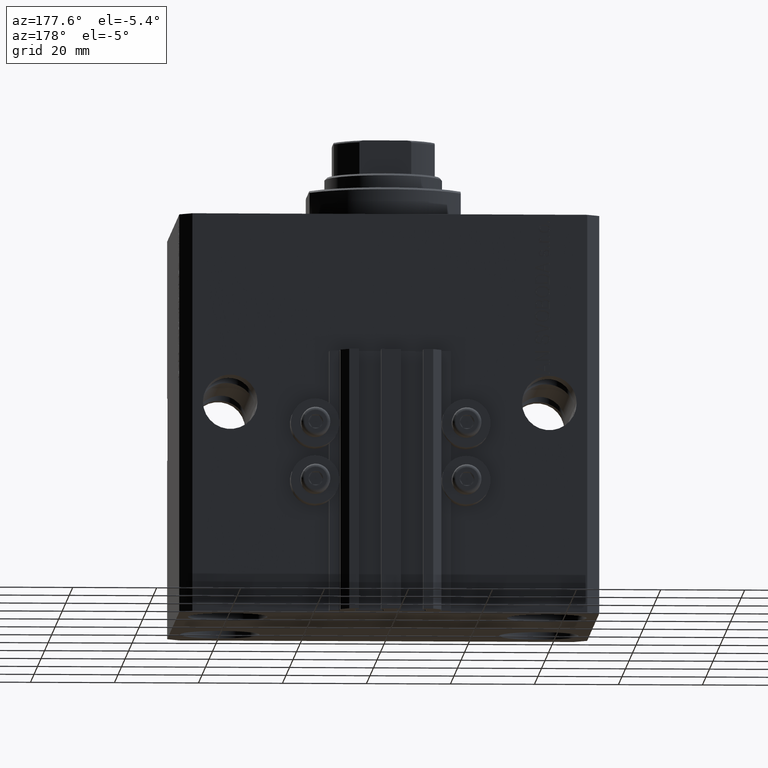
[diagram: clean part render]
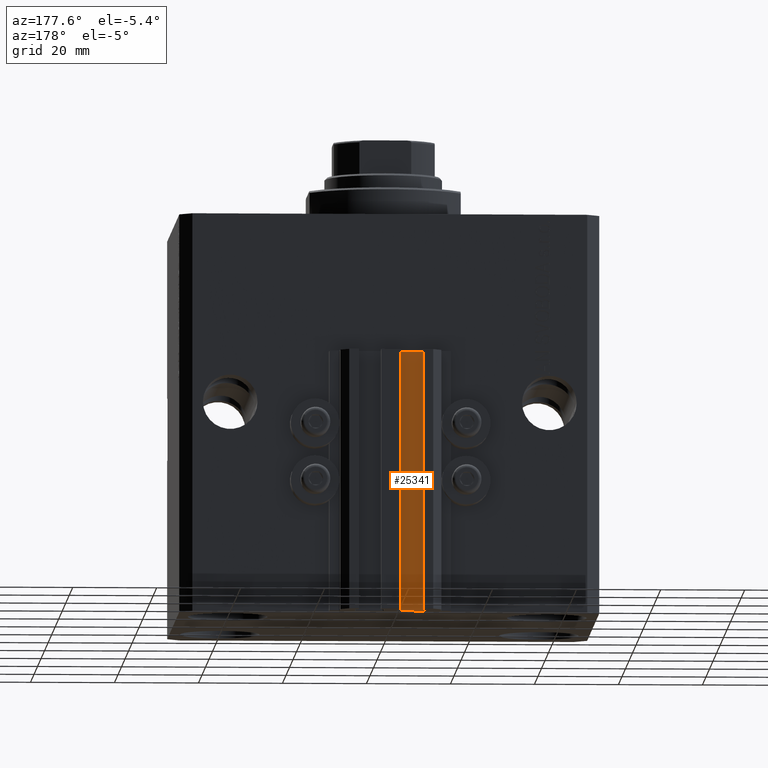
[diagram: same view with one face highlighted and labeled with its STEP entity id]
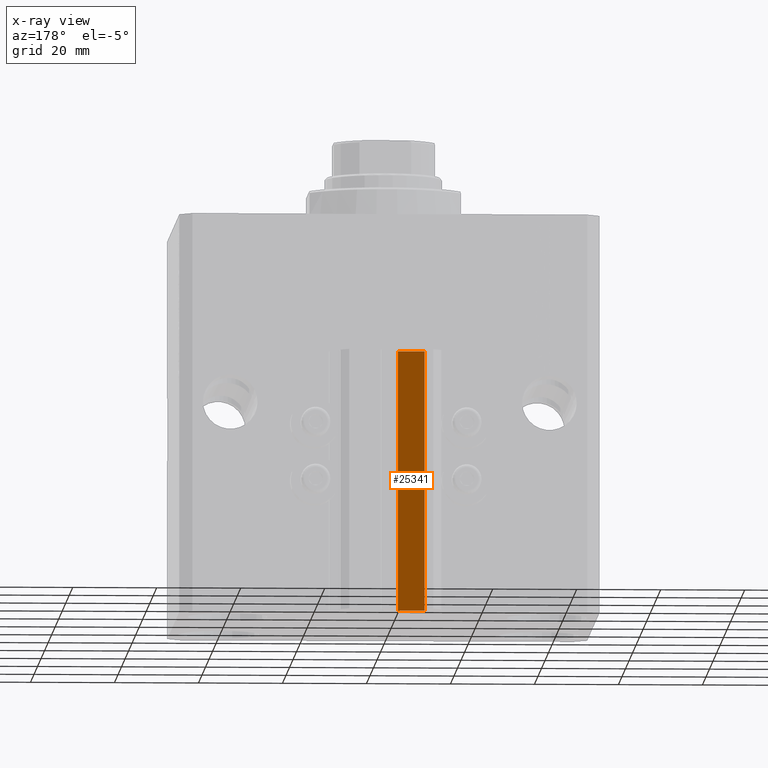
[diagram: x-ray of the same camera — body ghosted, the highlighted face saturated]
A machine part, auxiliary view. The second image highlights one B-rep face of the part: STEP entity #25341.
The next image is the same camera in x-ray: the body ghosted, the highlighted face saturated — about 0% of this face is hidden behind the body in this view.
In plain terms, the highlighted planar face has unit normal (0, 1, 0).
Its self-contained STEP definition (entity closure, byte-faithful):
#1281 = LINE ( 'NONE', #15244, #42064 ) ;
#2064 = DIRECTION ( 'NONE',  ( -1.000000000000000000, 0.000000000000000000, 0.000000000000000000 ) ) ;
#2343 = DIRECTION ( 'NONE',  ( -1.000000000000000000, 0.000000000000000000, 0.000000000000000000 ) ) ;
#3959 = PLANE ( 'NONE',  #43374 ) ;
#4134 = CARTESIAN_POINT ( 'NONE',  ( -1.800000000000000933, 39.50000000000000000, -95.00000000000000000 ) ) ;
#4871 = VECTOR ( 'NONE', #2064, 1000.000000000000000 ) ;
#7132 = CARTESIAN_POINT ( 'NONE',  ( -8.199999999999997513, 39.50000000000000000, -95.00000000000000000 ) ) ;
#11427 = DIRECTION ( 'NONE',  ( 0.000000000000000000, 0.000000000000000000, 1.000000000000000000 ) ) ;
#11877 = VERTEX_POINT ( 'NONE', #43001 ) ;
#15244 = CARTESIAN_POINT ( 'NONE',  ( -8.199999999999997513, 39.50000000000000000, -95.00000000000000000 ) ) ;
#15272 = FACE_OUTER_BOUND ( 'NONE', #15797, .T. ) ;
#15797 = EDGE_LOOP ( 'NONE', ( #28135, #36690, #44971, #42620 ) ) ;
#17489 = CARTESIAN_POINT ( 'NONE',  ( -1.800000000000000933, 39.50000000000000000, -95.00000000000000000 ) ) ;
#17561 = VECTOR ( 'NONE', #2343, 1000.000000000000000 ) ;
#17873 = EDGE_CURVE ( 'NONE', #23383, #45552, #21098, .T. ) ;
#19579 = DIRECTION ( 'NONE',  ( 0.000000000000000000, 0.000000000000000000, 1.000000000000000000 ) ) ;
#20636 = LINE ( 'NONE', #35328, #17561 ) ;
#21098 = LINE ( 'NONE', #17489, #37073 ) ;
#23383 = VERTEX_POINT ( 'NONE', #4134 ) ;
#24908 = LINE ( 'NONE', #35051, #4871 ) ;
#25341 = ADVANCED_FACE ( 'NONE', ( #15272 ), #3959, .T. ) ;
#28135 = ORIENTED_EDGE ( 'NONE', *, *, #38868, .F. ) ;
#28806 = DIRECTION ( 'NONE',  ( 0.000000000000000000, 0.000000000000000000, 1.000000000000000000 ) ) ;
#29520 = VERTEX_POINT ( 'NONE', #7132 ) ;
#31769 = EDGE_CURVE ( 'NONE', #29520, #11877, #1281, .T. ) ;
#35051 = CARTESIAN_POINT ( 'NONE',  ( -1.800000000000000933, 39.50000000000000000, -95.00000000000000000 ) ) ;
#35328 = CARTESIAN_POINT ( 'NONE',  ( -1.800000000000000933, 39.50000000000000000, -33.00000000000000000 ) ) ;
#36690 = ORIENTED_EDGE ( 'NONE', *, *, #17873, .F. ) ;
#37073 = VECTOR ( 'NONE', #28806, 1000.000000000000000 ) ;
#38704 = CARTESIAN_POINT ( 'NONE',  ( -1.800000000000000933, 39.50000000000000000, -33.00000000000000000 ) ) ;
#38868 = EDGE_CURVE ( 'NONE', #45552, #11877, #20636, .T. ) ;
#41047 = DIRECTION ( 'NONE',  ( 0.000000000000000000, 1.000000000000000000, -0.000000000000000000 ) ) ;
#42064 = VECTOR ( 'NONE', #19579, 1000.000000000000000 ) ;
#42580 = EDGE_CURVE ( 'NONE', #23383, #29520, #24908, .T. ) ;
#42620 = ORIENTED_EDGE ( 'NONE', *, *, #31769, .T. ) ;
#43001 = CARTESIAN_POINT ( 'NONE',  ( -8.199999999999997513, 39.50000000000000000, -33.00000000000000000 ) ) ;
#43374 = AXIS2_PLACEMENT_3D ( 'NONE', #45153, #41047, #11427 ) ;
#44971 = ORIENTED_EDGE ( 'NONE', *, *, #42580, .T. ) ;
#45153 = CARTESIAN_POINT ( 'NONE',  ( -1.800000000000000933, 39.50000000000000000, -95.00000000000000000 ) ) ;
#45552 = VERTEX_POINT ( 'NONE', #38704 ) ;